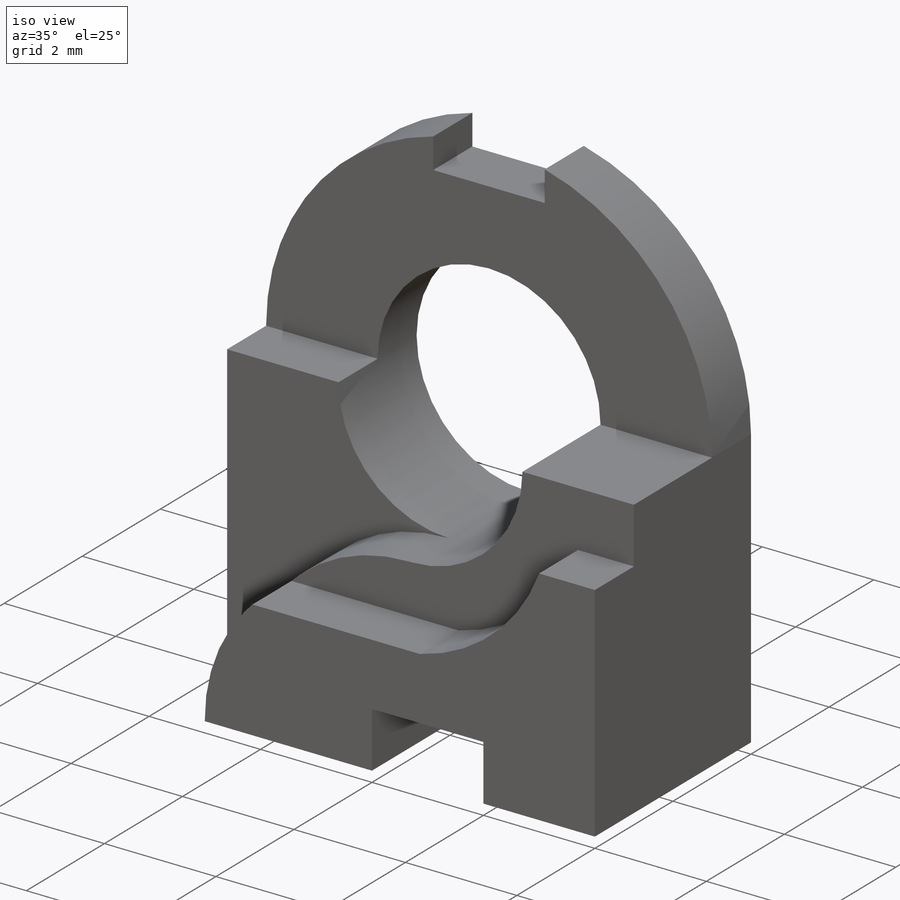
[diagram: iso view]
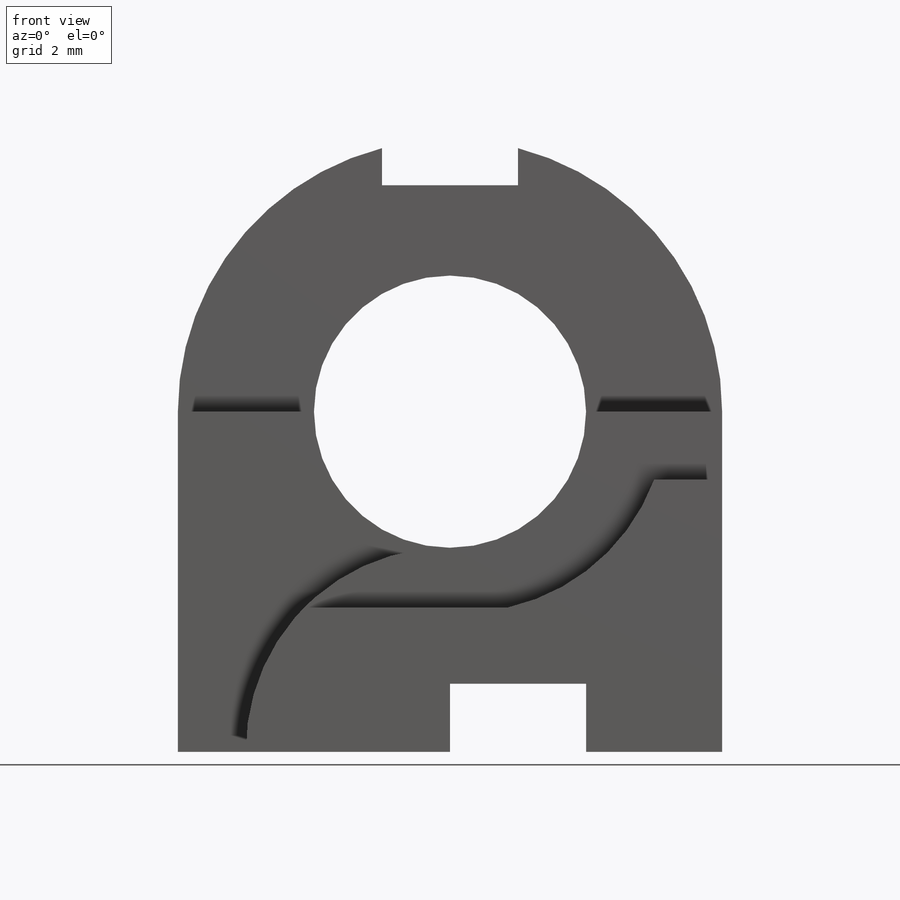
[diagram: front view]
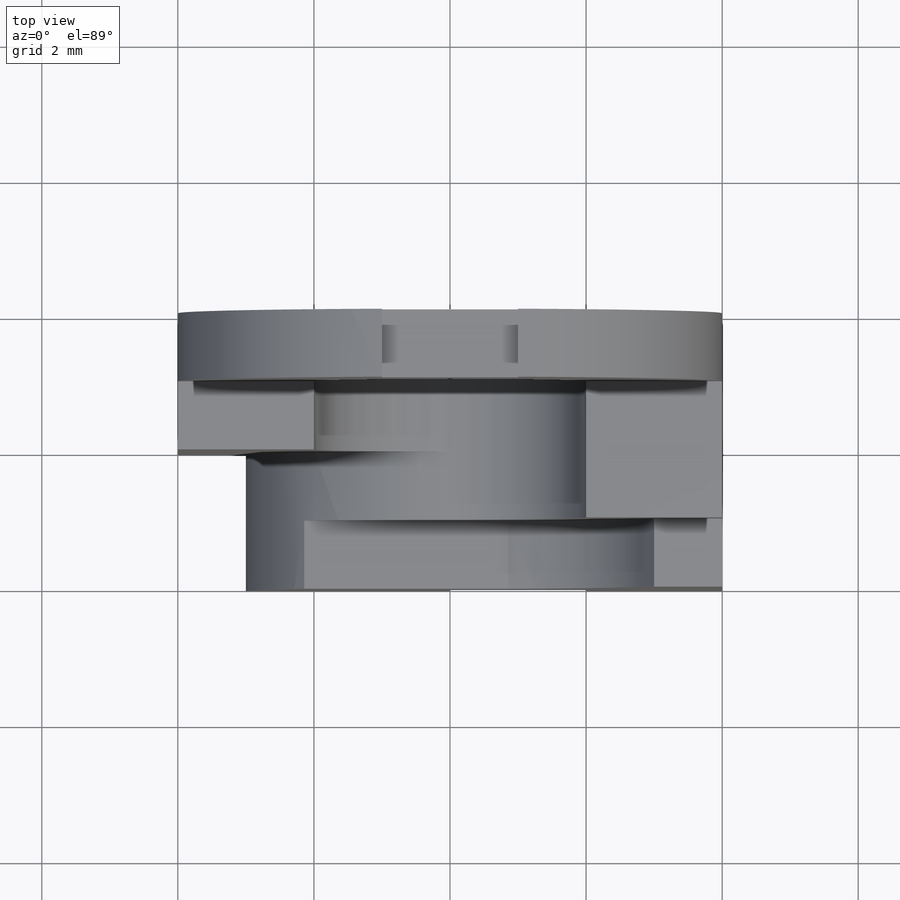
[diagram: top view]
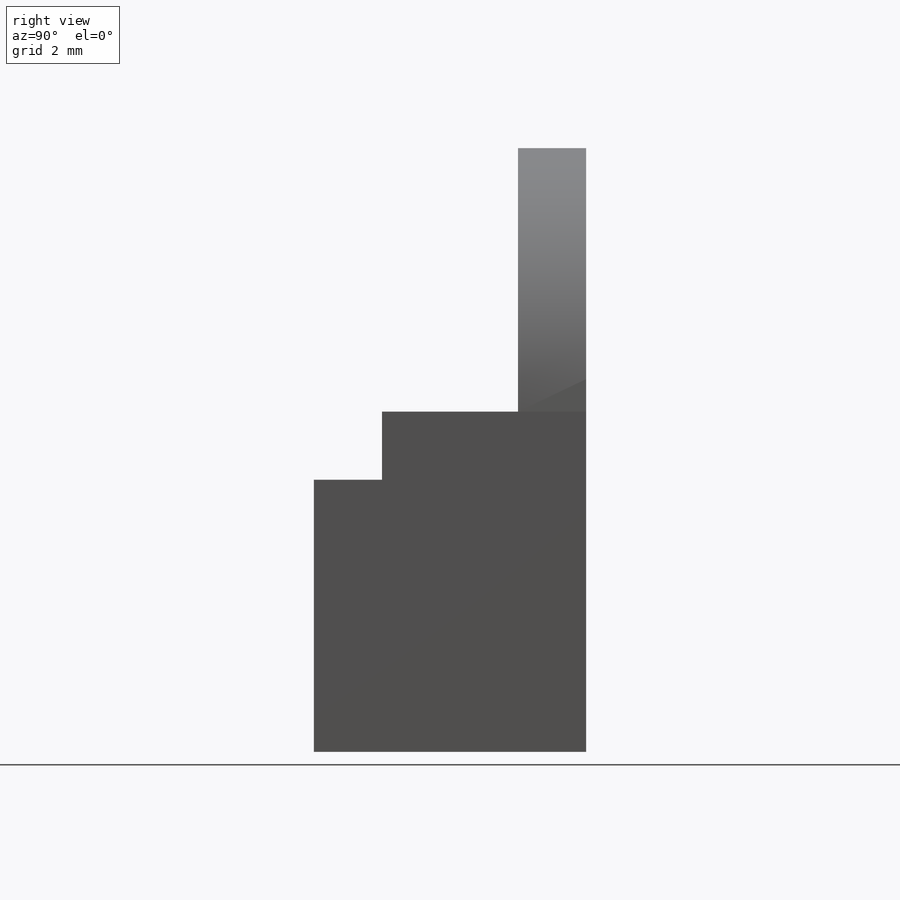
[diagram: right view]
SOLIDWORKS PART (.sldprt)
format: sldprt  version: not decoded by parser v0  size: 244,736 bytes
history: native  units: mm
features: sketch x6, cut_extrude x5, material x1, extrude x1 (+13 scaffold rows collapsed)
feature tree (26):
  scaffold x13  (default folders/planes/origin — collapsed)
  material  "Material <not specified>"
  sketch  "Sketch1"  dims[D1=4.0mm D2=4.0mm D3=4.0mm D4=8.0mm D5=5.0mm]
  extrude  "Boss-Extrude1"  Depth=4mm
  sketch  "Sketch2"  dims[D1=2.0mm D2=4.0mm D3=1.0mm]
  cut_extrude  "Cut-Extrude1"  Depth=4mm
  sketch  "Sketch3"  dims[c1.D4=~1.000097mm c1.D1=2.0mm c1.D2=1.0mm c1.D3=1.0mm c2.D2=~0.545157mm c2.D3=~0.545157mm]
  cut_extrude  "Cut-Extrude2"  Depth=4mm
  sketch  "Sketch5"
  cut_extrude  "Cut-Extrude3"  Depth=3mm
  sketch  "Sketch6"  dims[D2=~2.964412mm D1=1.0mm]
  cut_extrude  "Cut-Extrude4"  Depth=2mm
  sketch  "Sketch7"  dims[D4=3.0mm D1=1.0mm D2=1.0mm D3=3.0mm]
  cut_extrude  "Cut-Extrude5"  Depth=1mm
decode coverage: 11 of 12 modeling features carry decoded parameters
note: ~ marks probable driven/reference dimensions
note: suppression state not decoded; provenance and decode notes live in map.json
